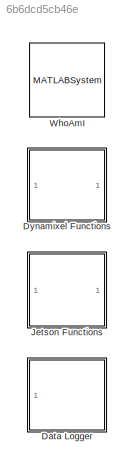
MODEL slx_6b6dcd5cb46e
KIND library
CONFIG AbsTol = auto
CONFIG EnableMultiTasking = off
CONFIG FixedStep = auto
CONFIG MaxStep = auto
CONFIG MinStep = auto
CONFIG RelTol = 1e-3
CONFIG SampleTimeConstraint = Unconstrained
CONFIG Solver = VariableStepAuto
CONFIG SolverName = VariableStepAuto
CONFIG StartTime = 0.0
CONFIG StopTime = 10.0
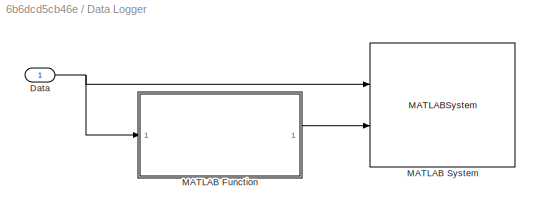
BLOCK [SubSystem] Data Logger
  Ports = [1]
  RequestExecContextInheritance = off
BLOCK [Inport] Data Logger/Data
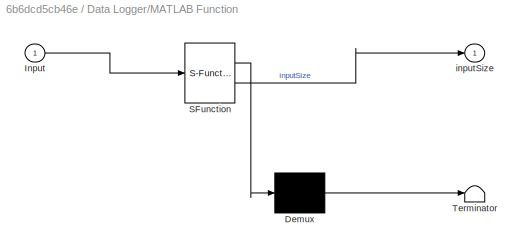
BLOCK [SubSystem] Data Logger/MATLAB Function
  ErrorFcn = Stateflow.Translate.translate
  PermitHierarchicalResolution = ExplicitOnly
  Ports = [1, 1]
  RequestExecContextInheritance = off
  SFBlockType = MATLAB Function
  TreatAsAtomicUnit = on
BLOCK [Demux] Data Logger/MATLAB Function/ Demux 
  Outputs = 1
  Ports = [1, 1]
BLOCK [S-Function] Data Logger/MATLAB Function/ SFunction 
  EnableBusSupport = on
  FunctionName = sf_sfun
  PortCounts = [1 2]
  Ports = [1, 2]
  SFcnIsStateOwnerBlock = off
  SFunctionDeploymentMode = off
  Tag = Stateflow S-Function 2
BLOCK [Terminator] Data Logger/MATLAB Function/ Terminator 
BLOCK [Inport] Data Logger/MATLAB Function/Input
BLOCK [Outport] Data Logger/MATLAB Function/inputSize
BLOCK [MATLABSystem] Data Logger/MATLAB System
  MaskDisplay = disp('CustomDataLogger');\nport_label('input',1,'u1');\nport_label('input',2,'u2');
  MaskType = CustomDataLogger
  Ports = [2]
  System = CustomDataLogger
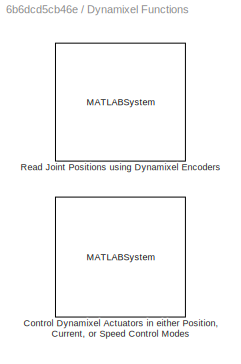
BLOCK [SubSystem] Dynamixel Functions
  Ports = []
  RequestExecContextInheritance = off
BLOCK [MATLABSystem] Dynamixel Functions/Control Dynamixel Actuators in either Position, Current, or Speed Control Modes
  ACCELERATION_TIME = 0
  CURRENT_LIMIT = 850
  MAX_POSITION = 3072
  MIN_POSITION = 1024
  MOVE_TIME = 0
  MaskDisplay = disp('Dynamixel_Controller');\nport_label('input',1,'Control_Mode');\nport_label('input',2,'Joint1_Command');\nport_label('input',3,'Joint2_Command');\nport_label('input',4,'Joint3_Command');
  MaskType = Dynamixel_Controller
  POSITION_D_GAIN = 200
  POSITION_I_GAIN = 0
  POSITION_P_GAIN = 400
  Ports = [4]
  SPEED_I_GAIN = 1920
  SPEED_P_GAIN = 100
  SampleTime = 0.05
  System = Dynamixel_Controller
  VELOCITY_LIMIT = 1023
BLOCK [MATLABSystem] Dynamixel Functions/Read Joint Positions using Dynamixel Encoders
  MaskDisplay = disp('ReadArm_Position_Rates');\nport_label('output',1,'theta1');\nport_label('output',2,'theta2');\nport_label('output',3,'theta3');\nport_label('output',4,'omega1');\nport_label('output',5,'omega2');\nport_label('output',6,'omega3');
  MaskType = ReadArm_Position_Rates
  Ports = [0, 6]
  SampleTime = 0.1
  System = ReadArm_Position_Rates
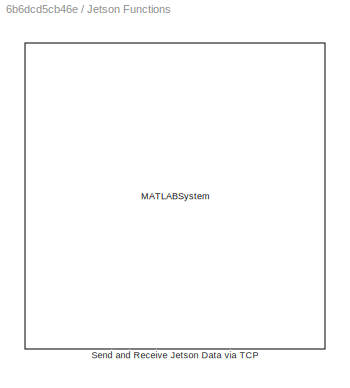
BLOCK [SubSystem] Jetson Functions
  Ports = []
  RequestExecContextInheritance = off
BLOCK [MATLABSystem] Jetson Functions/Send and Receive Jetson Data via TCP
  MaskDisplay = disp('guidance_server');
  MaskType = guidance_server
  Ports = [13, 3]
  System = guidance_server
BLOCK [MATLABSystem] WhoAmI
  MaskDisplay = disp('IdentifyPlatform');\nport_label('output',1,'y');
  MaskType = IdentifyPlatform
  Ports = [0, 1]
  SampleTime = 0.1
  System = IdentifyPlatform
NET Data Logger/Data:1 -> Data Logger/MATLAB Function:1, Data Logger/MATLAB System:1
LINE Data Logger/MATLAB Function:1 -> Data Logger/MATLAB System:2
note: NET lines group one-source signal fan-out (src -> all destinations, sorted); 1:1 wires keep LINE
CHART Data Logger/MATLAB Function states=1 transitions=1
  STATE_LABEL 'eML_blk_kernel()'
  STATE_LABEL 'SCRIPT:\nfunction inputSize = getSizeInput(Input)\n\n    inputSize = max(size(Input));\n\nend'
CHART  states=0 transitions=0
